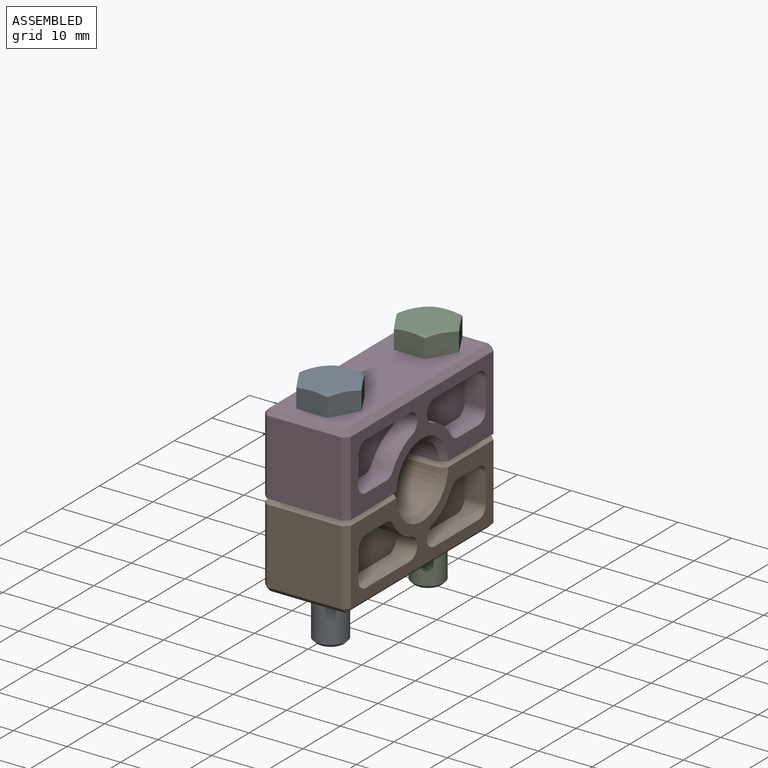
[diagram: assembled view]
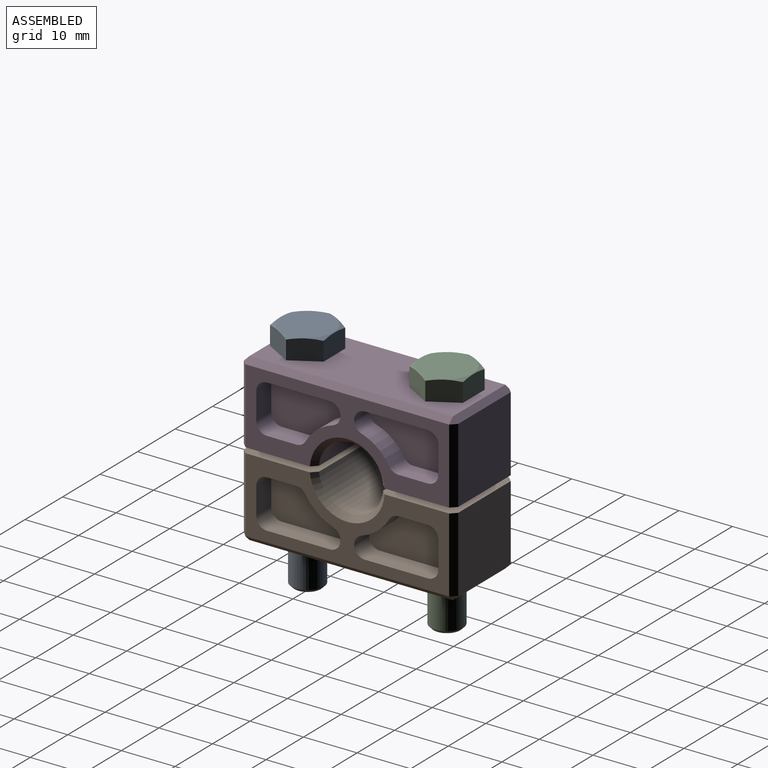
[diagram: assembled view, second angle]
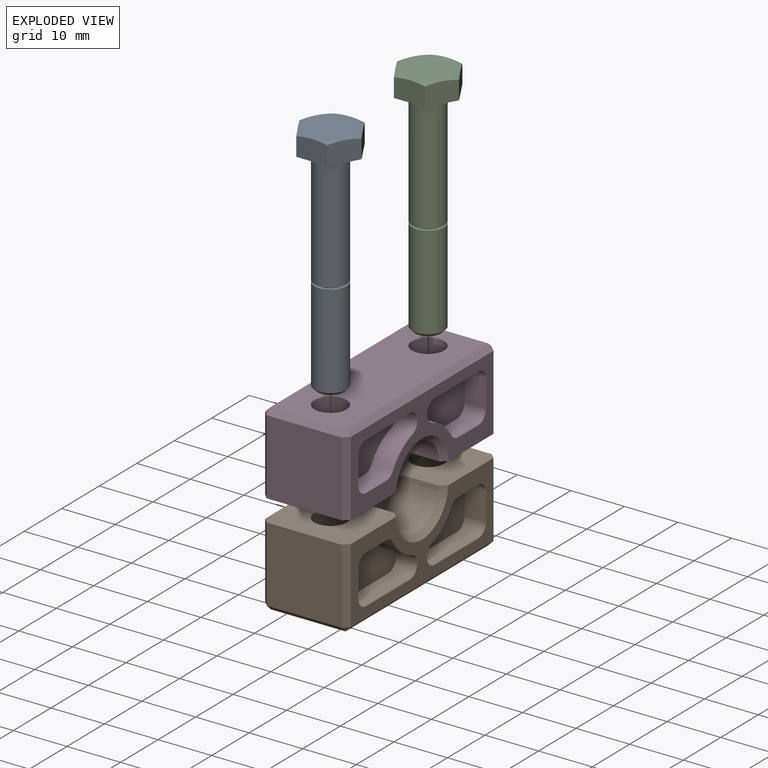
[diagram: exploded view]
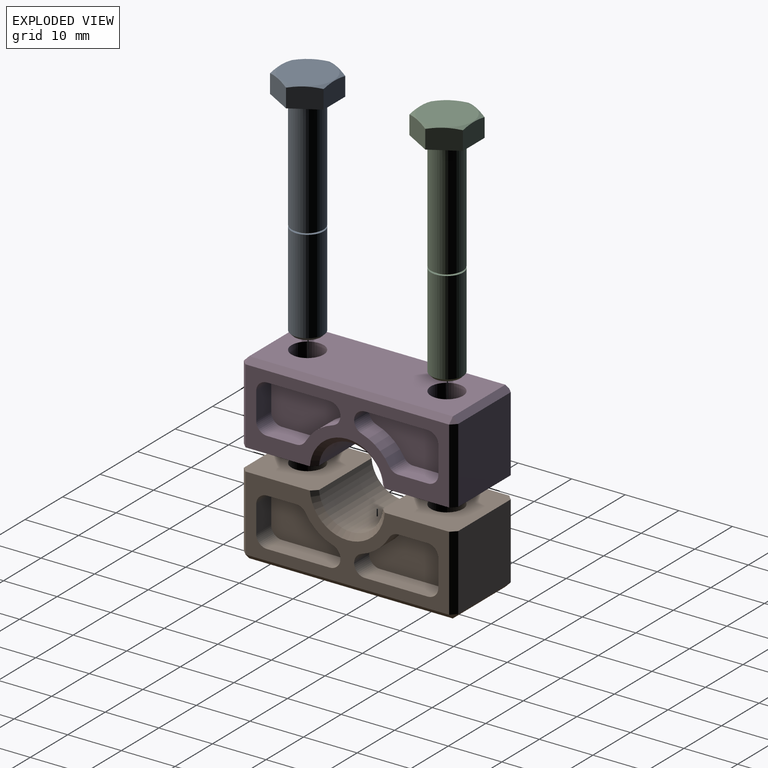
[diagram: exploded view, second angle]
ASSEMBLY  parts=4 mates=3
PART A: 18 faces, bbox 11.5x11.5x44.1 mm
  f0: cone r=2.73mm half-angle=45deg, axis (0,0,1), area 13.1mm2, adj f1,f17
  f1: cylinder r=3mm len=17.46mm, axis (0,0,-1), area 329.1mm2, adj f0,f16
  f2: cone r=2.73mm half-angle=60deg, axis (0,0,1), area 10.7mm2, adj f3,f16
  f3: cylinder r=3mm len=21.39mm, axis (0,0,-1), area 403.1mm2, adj f2,f4
  f4: torus R=3.3mm, axis (0,0,-1), area 9.2mm2, adj f3,f15
  f5: torus R=4.44mm, axis (0,0,-1), area 6.7mm2, adj f14,f15
  f6: cone r=5.32mm half-angle=68deg, axis (0,0,-1), area 12.9mm2, adj f7,f8,f9,f10,f11,f12,f13
  f7: plane 5.77x3.86mm, normal (0,1,0), area 21.3mm2, adj f6,f8,f12,f14
  f8: plane 5x3.97mm, normal (-0.87,0.5,0), area 21.3mm2, adj f6,f7,f9,f14
  f9: plane 5x3.97mm, normal (-0.87,-0.5,0), area 21.3mm2, adj f6,f8,f10,f14
  f10: plane 5.77x3.97mm, normal (0,-1,0), area 21.3mm2, adj f6,f9,f11,f14
  f11: plane 5x3.97mm, normal (0.87,-0.5,0), area 21.3mm2, adj f6,f10,f12,f14
  f12: plane 5x3.97mm, normal (0.87,0.5,0), area 21.3mm2, adj f6,f7,f11,f14
  f13: plane 9.75x9.75mm, normal (0,0,1), area 74.6mm2, adj f6
  f14: plane 11.55x10mm, normal (0,0,-1), area 20.4mm2, adj f5,f7,f8,f9,f10,f11,f12
  f15: plane 8.88x8.88mm, normal (0,0,-1), area 27.7mm2, adj f4,f5
  f16: plane 6x6mm, normal (0,0,1), area 9.3mm2, adj f1,f2
  f17: plane 4.92x4.92mm, normal (0,0,-1), area 19mm2, adj f0
PART B: 60 faces, bbox 16x15.1x40 mm
  f0: plane 38x14mm, normal (-1,0,0), area 237.5mm2, adj f2,f6,f28,f29,f30,f31,f32,f33
  f1: plane 38x14mm, normal (0,-1,0), area 475.5mm2, adj f8,f9,f49,f50,f54,f55
  f2: plane 16.01x14.03mm, normal (0,1,0), area 194.1mm2, adj f0,f4,f5,f7,f9,f46,f48,f58
  f3: plane 14x14mm, normal (0,0,-1), area 196mm2, adj f6,f51,f55,f57
  f4: plane 38x14mm, normal (1,0,0), area 237.5mm2, adj f2,f6,f10,f11,f12,f13,f14,f15
  f5: plane 14x14mm, normal (0,0,1), area 196mm2, adj f2,f46,f48,f49
  f6: plane 16.01x14.03mm, normal (0,1,0), area 194.1mm2, adj f0,f3,f4,f7,f8,f51,f57,f58
  f7: cylinder r=6mm len=14mm, axis (-1,0,0), area 249.9mm2, adj f2,f6,f58,f59
  f8: cylinder r=3mm len=15mm, axis (0,1,0), area 282.7mm2, adj f1,f6
  f9: cylinder r=3mm len=15mm, axis (0,1,0), area 282.7mm2, adj f1,f2
  f10: cylinder r=9mm len=5.11mm, axis (1,0,0), area 26.8mm2, adj f4,f14,f16,f18
  f11: plane 11.72x4mm, normal (0,1,0), area 46.9mm2, adj f4,f14,f17,f18
  f12: plane 5x4mm, normal (0,0,1), area 20mm2, adj f4,f15,f17,f18
  f13: plane 5.47x4mm, normal (0,-1,0), area 21.9mm2, adj f4,f15,f16,f18
  f14: cylinder r=2mm len=4mm, axis (1,0,0), area 22.7mm2, adj f4,f10,f11,f18
  f15: cylinder r=2mm len=4mm, axis (1,0,0), area 12.6mm2, adj f4,f12,f13,f18
  f16: cylinder r=2mm len=4mm, axis (1,0,0), area 8.4mm2, adj f4,f10,f13,f18
  f17: cylinder r=2mm len=4mm, axis (-1,0,0), area 12.6mm2, adj f4,f11,f12,f18
  f18: plane 15.72x9mm, normal (1,0,0), area 112.3mm2, adj f10,f11,f12,f13,f14,f15,f16,f17
  f19: cylinder r=9mm len=5.11mm, axis (1,0,0), area 26.8mm2, adj f4,f23,f26,f27
  f20: plane 11.72x4mm, normal (0,1,0), area 46.9mm2, adj f4,f23,f25,f27
  f21: plane 5.47x4mm, normal (0,-1,0), area 21.9mm2, adj f4,f24,f26,f27
  f22: plane 5x4mm, normal (0,0,-1), area 20mm2, adj f4,f24,f25,f27
  f23: cylinder r=2mm len=4mm, axis (1,0,0), area 22.7mm2, adj f4,f19,f20,f27
  f24: cylinder r=2mm len=4mm, axis (-1,0,0), area 12.6mm2, adj f4,f21,f22,f27
  f25: cylinder r=2mm len=4mm, axis (1,0,0), area 12.6mm2, adj f4,f20,f22,f27
  f26: cylinder r=2mm len=4mm, axis (1,0,0), area 8.4mm2, adj f4,f19,f21,f27
  f27: plane 15.72x9mm, normal (1,0,0), area 112.3mm2, adj f19,f20,f21,f22,f23,f24,f25,f26
  f28: cylinder r=9mm len=5.11mm, axis (-1,0,0), area 26.8mm2, adj f0,f32,f35,f36
  f29: plane 5.47x4mm, normal (0,-1,0), area 21.9mm2, adj f0,f33,f35,f36
  f30: plane 5x4mm, normal (0,0,1), area 20mm2, adj f0,f33,f34,f36
  f31: plane 11.72x4mm, normal (0,1,0), area 46.9mm2, adj f0,f32,f34,f36
  f32: cylinder r=2mm len=4mm, axis (-1,0,0), area 22.7mm2, adj f0,f28,f31,f36
  f33: cylinder r=2mm len=4mm, axis (-1,0,0), area 12.6mm2, adj f0,f29,f30,f36
  f34: cylinder r=2mm len=4mm, axis (1,0,0), area 12.6mm2, adj f0,f30,f31,f36
  f35: cylinder r=2mm len=4mm, axis (-1,0,0), area 8.4mm2, adj f0,f28,f29,f36
  f36: plane 15.72x9mm, normal (-1,0,0), area 112.3mm2, adj f28,f29,f30,f31,f32,f33,f34,f35
  f37: plane 11.72x4mm, normal (0,1,0), area 46.9mm2, adj f0,f41,f44,f45
  f38: cylinder r=9mm len=5.11mm, axis (-1,0,0), area 26.8mm2, adj f0,f41,f43,f45
  f39: plane 5x4mm, normal (0,0,-1), area 20mm2, adj f0,f42,f44,f45
  f40: plane 5.47x4mm, normal (0,-1,0), area 21.9mm2, adj f0,f42,f43,f45
  f41: cylinder r=2mm len=4mm, axis (-1,0,0), area 22.7mm2, adj f0,f37,f38,f45
  f42: cylinder r=2mm len=4mm, axis (1,0,0), area 12.6mm2, adj f0,f39,f40,f45
  f43: cylinder r=2mm len=4mm, axis (-1,0,0), area 8.4mm2, adj f0,f38,f40,f45
  f44: cylinder r=2mm len=4mm, axis (-1,0,0), area 12.6mm2, adj f0,f37,f39,f45
  f45: plane 15.72x9mm, normal (-1,0,0), area 112.3mm2, adj f37,f38,f39,f40,f41,f42,f43,f44
  f46: plane 14x1mm, normal (0.71,0,0.71), area 19.8mm2, adj f2,f4,f5,f47
  f47: plane 1x1mm, normal (0.58,-0.58,0.58), area 0.9mm2, adj f46,f49,f50
  f48: plane 14x1mm, normal (-0.71,0,0.71), area 19.8mm2, adj f0,f2,f5,f52
  f49: plane 14x1mm, normal (0,-0.71,0.71), area 19.8mm2, adj f1,f5,f47,f52
  f50: plane 38x1mm, normal (0.71,-0.71,0), area 53.7mm2, adj f1,f4,f47,f53
  f51: plane 14x1mm, normal (0.71,0,-0.71), area 19.8mm2, adj f3,f4,f6,f53
  f52: plane 1x1mm, normal (-0.58,-0.58,0.58), area 0.9mm2, adj f48,f49,f54
  f53: plane 1x1mm, normal (0.58,-0.58,-0.58), area 0.9mm2, adj f50,f51,f55
  f54: plane 38x1mm, normal (-0.71,-0.71,0), area 53.7mm2, adj f0,f1,f52,f56
  f55: plane 14x1mm, normal (0,-0.71,-0.71), area 19.8mm2, adj f1,f3,f53,f56
  f56: plane 1x1mm, normal (-0.58,-0.58,-0.58), area 0.9mm2, adj f54,f55,f57
  f57: plane 14x1mm, normal (-0.71,0,-0.71), area 19.8mm2, adj f0,f3,f6,f56
  f58: cone r=6mm half-angle=45deg, axis (1,0,0), area 27.5mm2, adj f2,f4,f6,f7
  f59: cone r=6mm half-angle=45deg, axis (-1,0,0), area 27.5mm2, adj f0,f2,f6,f7
PART C: same geometry as A
PART D: same geometry as B
PLACE A t=(-34.4,-56.31,-3)mm
PLACE B rot(axis=(1,0,0),90deg) t=(-34.4,-43.31,-19.3)mm
PLACE C t=(-34.4,-30.31,-3)mm
PLACE D rot(axis=(-1,0,0),90deg) t=(-34.4,-43.31,-18.3)mm
MATE fastened A.f5 <-> D.f8  axis (0,0,-1) through (-34.4,-56.31,-3.3)mm
MATE fastened D.f9 <-> C.f6  axis (0,0,1) through (-34.4,-30.31,-3.3)mm
MATE fastened B.f8 <-> D.f9  axis (0,0,1) through (-34.4,-30.31,-19.3)mm
